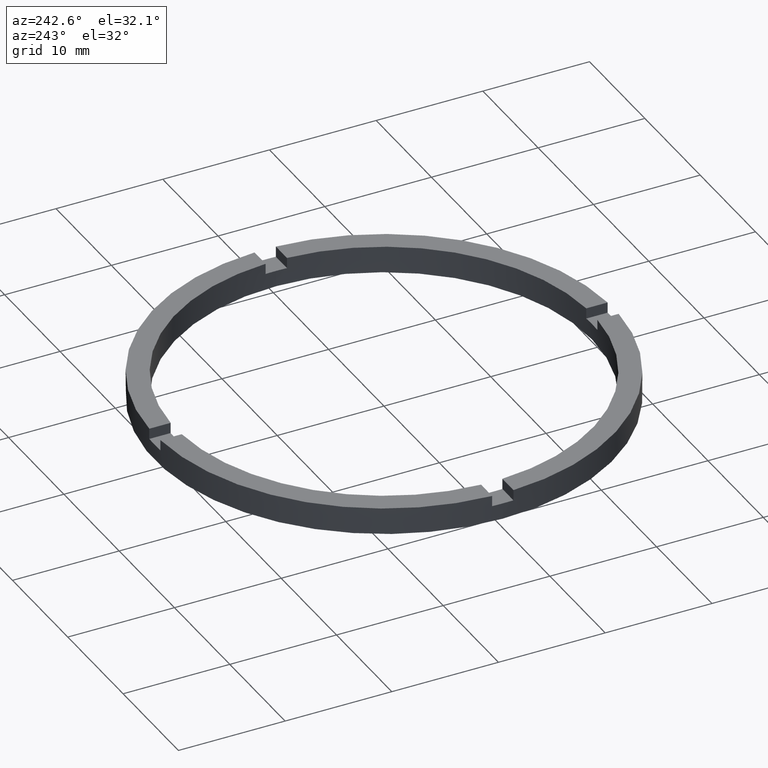
[diagram: clean part render]
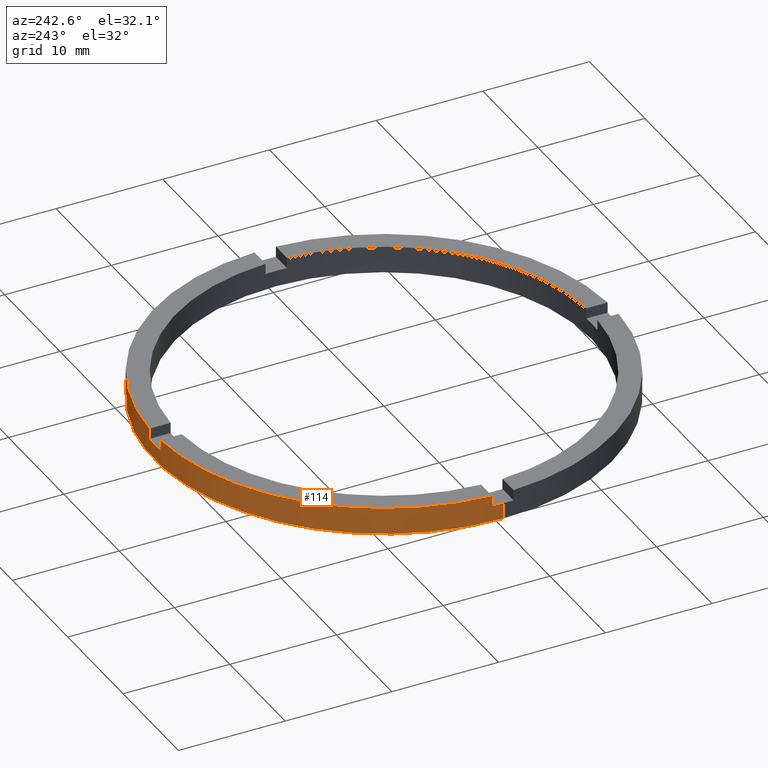
[diagram: same view with one face highlighted and labeled with its STEP entity id]
A machine part, auxiliary view. The second image highlights one B-rep face of the part: STEP entity #114.
In plain terms, the highlighted cylindrical surface (partial cylindrical patch) has radius 21.5 mm, axis along (-0, -0, -1).
Its self-contained STEP definition (entity closure, byte-faithful):
#3 = CARTESIAN_POINT ( 'NONE',  ( 0.000000000000000000, 0.000000000000000000, 2.500000000000000000 ) ) ;
#13 = DIRECTION ( 'NONE',  ( -0.000000000000000000, -0.000000000000000000, -1.000000000000000000 ) ) ;
#24 = AXIS2_PLACEMENT_3D ( 'NONE', #218, #525, #767 ) ;
#28 = CIRCLE ( 'NONE', #783, 21.50000000000000000 ) ;
#42 = DIRECTION ( 'NONE',  ( 0.000000000000000000, 0.000000000000000000, 1.000000000000000000 ) ) ;
#64 = CARTESIAN_POINT ( 'NONE',  ( 0.9999999999999744649, 21.47673159491452921, 2.500000000000000000 ) ) ;
#74 = EDGE_LOOP ( 'NONE', ( #730, #458, #356, #84, #728, #628, #194, #643, #461, #381, #118, #403 ) ) ;
#82 = CARTESIAN_POINT ( 'NONE',  ( -21.50000000000000000, 0.000000000000000000, 2.500000000000000000 ) ) ;
#84 = ORIENTED_EDGE ( 'NONE', *, *, #603, .F. ) ;
#86 = VERTEX_POINT ( 'NONE', #446 ) ;
#89 = VERTEX_POINT ( 'NONE', #272 ) ;
#90 = DIRECTION ( 'NONE',  ( -0.000000000000000000, -0.000000000000000000, -1.000000000000000000 ) ) ;
#105 = VERTEX_POINT ( 'NONE', #155 ) ;
#114 = ADVANCED_FACE ( 'NONE', ( #670 ), #674, .T. ) ;
#118 = ORIENTED_EDGE ( 'NONE', *, *, #217, .F. ) ;
#140 = VECTOR ( 'NONE', #42, 1000.000000000000000 ) ;
#144 = EDGE_CURVE ( 'NONE', #443, #668, #415, .T. ) ;
#155 = CARTESIAN_POINT ( 'NONE',  ( 21.47673159491453632, 0.9999999999998419042, 2.500000000000000000 ) ) ;
#165 = VERTEX_POINT ( 'NONE', #493 ) ;
#176 = CIRCLE ( 'NONE', #285, 21.50000000000000000 ) ;
#178 = CIRCLE ( 'NONE', #746, 21.50000000000000000 ) ;
#192 = DIRECTION ( 'NONE',  ( 0.000000000000000000, -0.000000000000000000, 1.000000000000000000 ) ) ;
#194 = ORIENTED_EDGE ( 'NONE', *, *, #738, .F. ) ;
#195 = VERTEX_POINT ( 'NONE', #596 ) ;
#197 = EDGE_CURVE ( 'NONE', #665, #205, #176, .T. ) ;
#205 = VERTEX_POINT ( 'NONE', #303 ) ;
#207 = VECTOR ( 'NONE', #90, 1000.000000000000000 ) ;
#208 = AXIS2_PLACEMENT_3D ( 'NONE', #409, #326, #270 ) ;
#217 = EDGE_CURVE ( 'NONE', #105, #86, #178, .T. ) ;
#218 = CARTESIAN_POINT ( 'NONE',  ( 0.000000000000000000, 0.000000000000000000, 1.500000000000000000 ) ) ;
#221 = DIRECTION ( 'NONE',  ( -1.000000000000000000, 0.000000000000000000, 0.000000000000000000 ) ) ;
#242 = DIRECTION ( 'NONE',  ( 1.000000000000000000, 0.000000000000000000, 0.000000000000000000 ) ) ;
#252 = DIRECTION ( 'NONE',  ( 1.000000000000000000, 0.000000000000000000, 0.000000000000000000 ) ) ;
#262 = CIRCLE ( 'NONE', #208, 21.50000000000000000 ) ;
#269 = CARTESIAN_POINT ( 'NONE',  ( 21.50000000000000000, 2.632990618166809235E-15, 1.500000000000000000 ) ) ;
#270 = DIRECTION ( 'NONE',  ( 1.000000000000000000, 0.000000000000000000, 0.000000000000000000 ) ) ;
#271 = EDGE_CURVE ( 'NONE', #665, #86, #448, .T. ) ;
#272 = CARTESIAN_POINT ( 'NONE',  ( -21.50000000000000000, 0.000000000000000000, 1.500000000000000000 ) ) ;
#275 = CARTESIAN_POINT ( 'NONE',  ( 21.47673159491453632, 0.9999999999998419042, 1.500000000000000000 ) ) ;
#285 = AXIS2_PLACEMENT_3D ( 'NONE', #669, #192, #242 ) ;
#287 = VECTOR ( 'NONE', #474, 1000.000000000000000 ) ;
#299 = CARTESIAN_POINT ( 'NONE',  ( 0.000000000000000000, 0.000000000000000000, 2.500000000000000000 ) ) ;
#303 = CARTESIAN_POINT ( 'NONE',  ( -1.000000000000025535, 21.47673159491452566, 1.500000000000000000 ) ) ;
#305 = CARTESIAN_POINT ( 'NONE',  ( 0.000000000000000000, 0.000000000000000000, 2.500000000000000000 ) ) ;
#317 = DIRECTION ( 'NONE',  ( 0.000000000000000000, 0.000000000000000000, 1.000000000000000000 ) ) ;
#326 = DIRECTION ( 'NONE',  ( 0.000000000000000000, 0.000000000000000000, 1.000000000000000000 ) ) ;
#329 = CARTESIAN_POINT ( 'NONE',  ( 0.9999999999999744649, 21.47673159491452921, 1.500000000000000000 ) ) ;
#330 = EDGE_CURVE ( 'NONE', #105, #694, #509, .T. ) ;
#332 = CARTESIAN_POINT ( 'NONE',  ( -21.47673159491452921, 0.9999999999999751310, 2.500000000000000000 ) ) ;
#356 = ORIENTED_EDGE ( 'NONE', *, *, #560, .T. ) ;
#361 = VERTEX_POINT ( 'NONE', #269 ) ;
#364 = DIRECTION ( 'NONE',  ( 0.000000000000000000, 0.000000000000000000, 1.000000000000000000 ) ) ;
#381 = ORIENTED_EDGE ( 'NONE', *, *, #271, .T. ) ;
#403 = ORIENTED_EDGE ( 'NONE', *, *, #330, .T. ) ;
#409 = CARTESIAN_POINT ( 'NONE',  ( 0.000000000000000000, 0.000000000000000000, 0.000000000000000000 ) ) ;
#415 = LINE ( 'NONE', #332, #140 ) ;
#435 = DIRECTION ( 'NONE',  ( 0.000000000000000000, 0.000000000000000000, 1.000000000000000000 ) ) ;
#443 = VERTEX_POINT ( 'NONE', #702 ) ;
#446 = CARTESIAN_POINT ( 'NONE',  ( 0.9999999999999744649, 21.47673159491452921, 2.500000000000000000 ) ) ;
#448 = LINE ( 'NONE', #64, #512 ) ;
#449 = DIRECTION ( 'NONE',  ( 1.000000000000000000, 0.000000000000000000, 0.000000000000000000 ) ) ;
#455 = CARTESIAN_POINT ( 'NONE',  ( 21.47673159491453632, 0.9999999999998419042, 2.500000000000000000 ) ) ;
#458 = ORIENTED_EDGE ( 'NONE', *, *, #611, .T. ) ;
#461 = ORIENTED_EDGE ( 'NONE', *, *, #197, .F. ) ;
#469 = DIRECTION ( 'NONE',  ( 0.000000000000000000, 0.000000000000000000, 1.000000000000000000 ) ) ;
#474 = DIRECTION ( 'NONE',  ( -0.000000000000000000, -0.000000000000000000, -1.000000000000000000 ) ) ;
#481 = LINE ( 'NONE', #82, #207 ) ;
#491 = LINE ( 'NONE', #530, #287 ) ;
#493 = CARTESIAN_POINT ( 'NONE',  ( -1.000000000000025535, 21.47673159491452566, 2.500000000000000000 ) ) ;
#497 = EDGE_CURVE ( 'NONE', #361, #694, #780, .T. ) ;
#506 = VECTOR ( 'NONE', #575, 1000.000000000000000 ) ;
#509 = LINE ( 'NONE', #455, #506 ) ;
#512 = VECTOR ( 'NONE', #469, 1000.000000000000000 ) ;
#525 = DIRECTION ( 'NONE',  ( 0.000000000000000000, 0.000000000000000000, 1.000000000000000000 ) ) ;
#530 = CARTESIAN_POINT ( 'NONE',  ( -1.000000000000025535, 21.47673159491452566, 2.500000000000000000 ) ) ;
#546 = CIRCLE ( 'NONE', #751, 21.50000000000000000 ) ;
#560 = EDGE_CURVE ( 'NONE', #714, #195, #262, .T. ) ;
#575 = DIRECTION ( 'NONE',  ( -0.000000000000000000, -0.000000000000000000, -1.000000000000000000 ) ) ;
#596 = CARTESIAN_POINT ( 'NONE',  ( -21.50000000000000000, 0.000000000000000000, 0.000000000000000000 ) ) ;
#603 = EDGE_CURVE ( 'NONE', #89, #195, #481, .T. ) ;
#611 = EDGE_CURVE ( 'NONE', #361, #714, #750, .T. ) ;
#628 = ORIENTED_EDGE ( 'NONE', *, *, #144, .T. ) ;
#639 = DIRECTION ( 'NONE',  ( 1.000000000000000000, 0.000000000000000000, 0.000000000000000000 ) ) ;
#643 = ORIENTED_EDGE ( 'NONE', *, *, #680, .T. ) ;
#657 = CARTESIAN_POINT ( 'NONE',  ( -21.47673159491452921, 0.9999999999999751310, 2.500000000000000000 ) ) ;
#665 = VERTEX_POINT ( 'NONE', #329 ) ;
#668 = VERTEX_POINT ( 'NONE', #657 ) ;
#669 = CARTESIAN_POINT ( 'NONE',  ( 0.000000000000000000, 0.000000000000000000, 1.500000000000000000 ) ) ;
#670 = FACE_OUTER_BOUND ( 'NONE', #74, .T. ) ;
#674 = CYLINDRICAL_SURFACE ( 'NONE', #753, 21.50000000000000000 ) ;
#680 = EDGE_CURVE ( 'NONE', #165, #205, #491, .T. ) ;
#693 = EDGE_CURVE ( 'NONE', #443, #89, #546, .T. ) ;
#694 = VERTEX_POINT ( 'NONE', #275 ) ;
#702 = CARTESIAN_POINT ( 'NONE',  ( -21.47673159491452921, 0.9999999999999751310, 1.500000000000000000 ) ) ;
#714 = VERTEX_POINT ( 'NONE', #729 ) ;
#728 = ORIENTED_EDGE ( 'NONE', *, *, #693, .F. ) ;
#729 = CARTESIAN_POINT ( 'NONE',  ( 21.50000000000000000, 2.632990618166809235E-15, 0.000000000000000000 ) ) ;
#730 = ORIENTED_EDGE ( 'NONE', *, *, #497, .F. ) ;
#735 = CARTESIAN_POINT ( 'NONE',  ( 21.50000000000000000, 2.632990618166809235E-15, 2.500000000000000000 ) ) ;
#738 = EDGE_CURVE ( 'NONE', #165, #668, #28, .T. ) ;
#746 = AXIS2_PLACEMENT_3D ( 'NONE', #299, #364, #449 ) ;
#747 = VECTOR ( 'NONE', #782, 1000.000000000000000 ) ;
#750 = LINE ( 'NONE', #735, #747 ) ;
#751 = AXIS2_PLACEMENT_3D ( 'NONE', #766, #317, #639 ) ;
#753 = AXIS2_PLACEMENT_3D ( 'NONE', #3, #13, #221 ) ;
#766 = CARTESIAN_POINT ( 'NONE',  ( 0.000000000000000000, 0.000000000000000000, 1.500000000000000000 ) ) ;
#767 = DIRECTION ( 'NONE',  ( 1.000000000000000000, 0.000000000000000000, 0.000000000000000000 ) ) ;
#780 = CIRCLE ( 'NONE', #24, 21.50000000000000000 ) ;
#782 = DIRECTION ( 'NONE',  ( -0.000000000000000000, -0.000000000000000000, -1.000000000000000000 ) ) ;
#783 = AXIS2_PLACEMENT_3D ( 'NONE', #305, #435, #252 ) ;